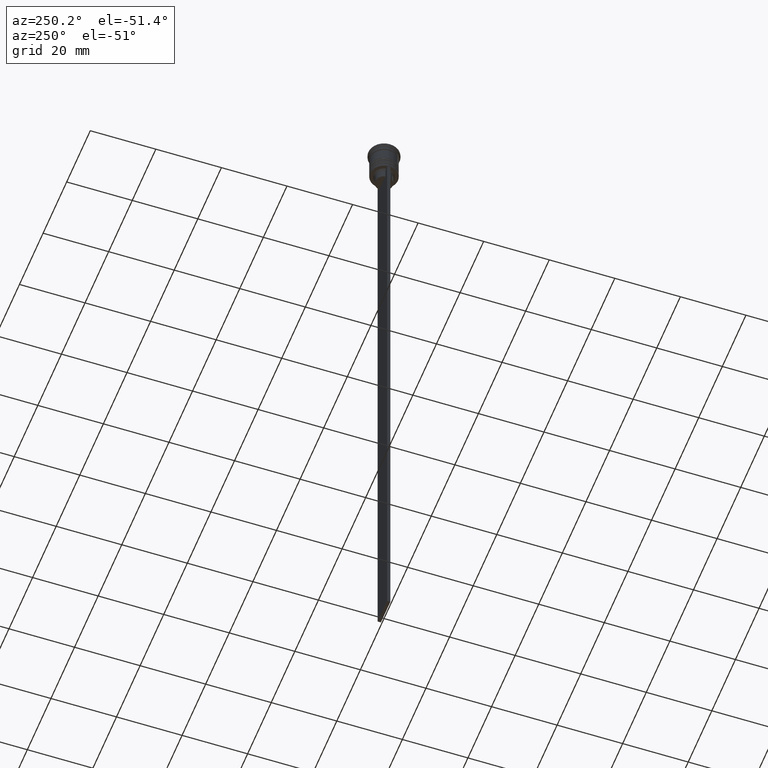
[diagram: clean part render]
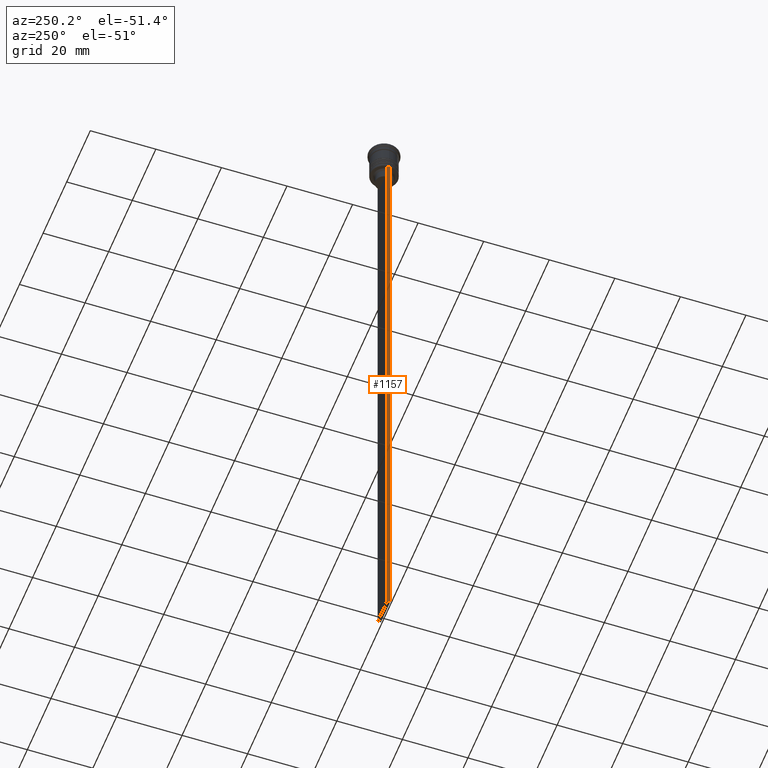
[diagram: same view with one face highlighted and labeled with its STEP entity id]
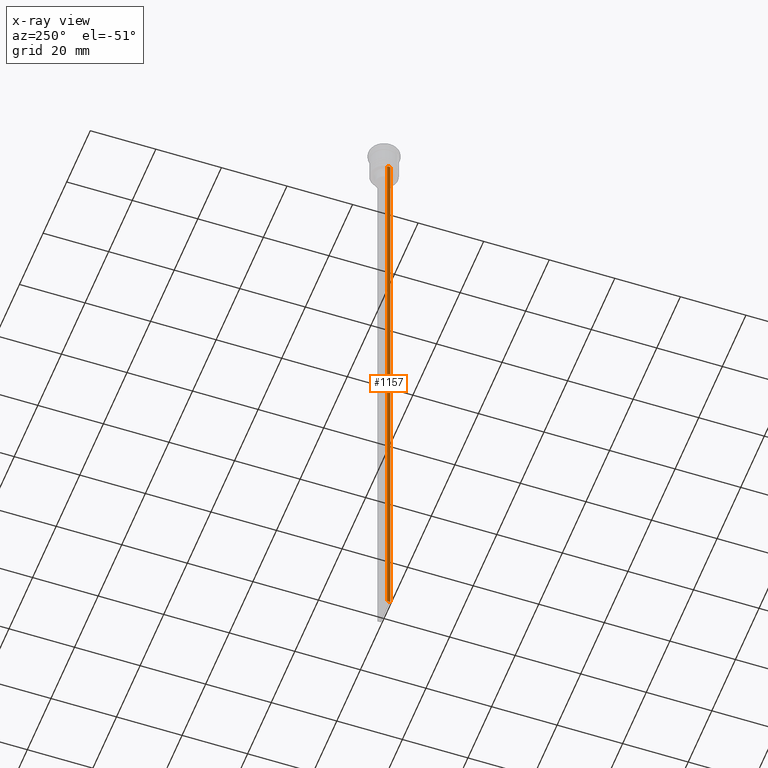
[diagram: x-ray of the same camera — body ghosted, the highlighted face saturated]
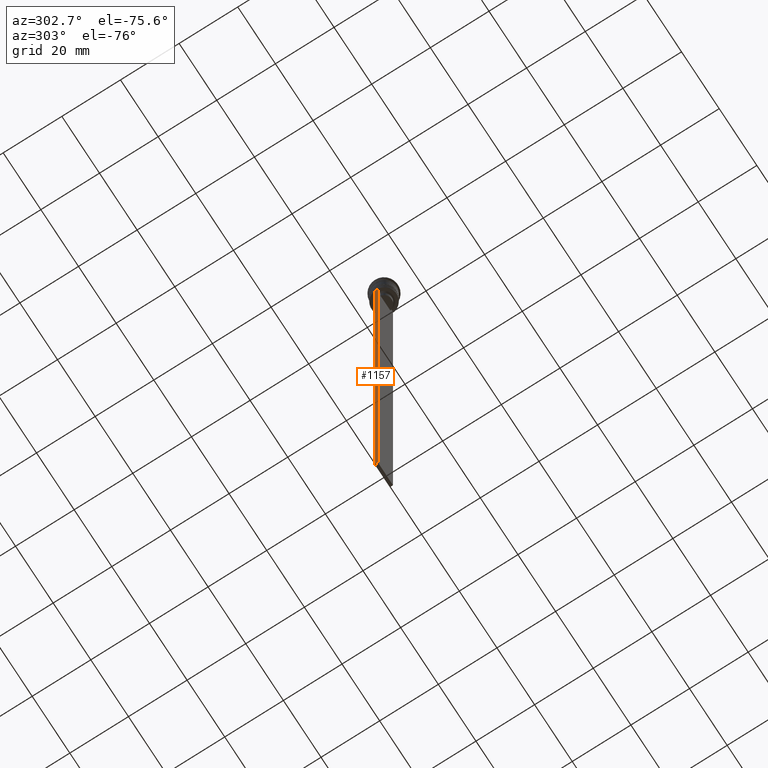
[diagram: same view with one face highlighted and labeled with its STEP entity id]
A machine part, auxiliary view. The second image highlights one B-rep face of the part: STEP entity #1157.
The next image is the same camera in x-ray: the body ghosted, the highlighted face saturated — about 0% of this face is hidden behind the body in this view.
A second angle (auxiliary view) of the same face is appended — the face is thin or edge-on in the first view.
In plain terms, the highlighted planar face has unit normal (-1, 0, 0).
Its self-contained STEP definition (entity closure, byte-faithful):
#59 = EDGE_CURVE ( 'NONE', #1277, #1807, #1113, .T. ) ;
#164 = DIRECTION ( 'NONE',  ( -1.000000000000000000, 0.000000000000000000, 0.000000000000000000 ) ) ;
#280 = EDGE_CURVE ( 'NONE', #1686, #1531, #676, .T. ) ;
#461 = CARTESIAN_POINT ( 'NONE',  ( -3.999999999999994671, -0.5000000000000004441, -1.437742251701450202 ) ) ;
#523 = VECTOR ( 'NONE', #663, 1000.000000000000000 ) ;
#638 = LINE ( 'NONE', #1406, #1134 ) ;
#663 = DIRECTION ( 'NONE',  ( 0.000000000000000000, 0.000000000000000000, -1.000000000000000000 ) ) ;
#676 = LINE ( 'NONE', #461, #523 ) ;
#896 = CARTESIAN_POINT ( 'NONE',  ( -3.999999999999994671, -0.5000000000000004441, -9.500000000000000000 ) ) ;
#907 = CARTESIAN_POINT ( 'NONE',  ( -3.999999999999994671, -0.5000000000000004441, -209.5000000000000284 ) ) ;
#1011 = ORIENTED_EDGE ( 'NONE', *, *, #280, .F. ) ;
#1083 = LINE ( 'NONE', #896, #1520 ) ;
#1113 = LINE ( 'NONE', #1851, #1799 ) ;
#1134 = VECTOR ( 'NONE', #1942, 1000.000000000000000 ) ;
#1157 = ADVANCED_FACE ( 'NONE', ( #1267 ), #2037, .T. ) ;
#1267 = FACE_OUTER_BOUND ( 'NONE', #1335, .T. ) ;
#1277 = VERTEX_POINT ( 'NONE', #2083 ) ;
#1335 = EDGE_LOOP ( 'NONE', ( #2156, #1888, #1924, #1011 ) ) ;
#1342 = AXIS2_PLACEMENT_3D ( 'NONE', #2003, #164, #2014 ) ;
#1406 = CARTESIAN_POINT ( 'NONE',  ( -3.999999999999994671, -0.5000000000000004441, -209.5000000000000284 ) ) ;
#1516 = EDGE_CURVE ( 'NONE', #1277, #1686, #1083, .T. ) ;
#1520 = VECTOR ( 'NONE', #2367, 1000.000000000000000 ) ;
#1531 = VERTEX_POINT ( 'NONE', #907 ) ;
#1686 = VERTEX_POINT ( 'NONE', #2081 ) ;
#1799 = VECTOR ( 'NONE', #1989, 1000.000000000000000 ) ;
#1807 = VERTEX_POINT ( 'NONE', #1925 ) ;
#1851 = CARTESIAN_POINT ( 'NONE',  ( -3.999999999999994671, 0.4999999999999995559, -1.437742251701450202 ) ) ;
#1854 = EDGE_CURVE ( 'NONE', #1531, #1807, #638, .T. ) ;
#1888 = ORIENTED_EDGE ( 'NONE', *, *, #59, .T. ) ;
#1924 = ORIENTED_EDGE ( 'NONE', *, *, #1854, .F. ) ;
#1925 = CARTESIAN_POINT ( 'NONE',  ( -3.999999999999994671, 0.4999999999999995559, -209.5000000000000284 ) ) ;
#1942 = DIRECTION ( 'NONE',  ( 0.000000000000000000, 1.000000000000000000, 0.000000000000000000 ) ) ;
#1989 = DIRECTION ( 'NONE',  ( 0.000000000000000000, 0.000000000000000000, -1.000000000000000000 ) ) ;
#2003 = CARTESIAN_POINT ( 'NONE',  ( -3.999999999999994671, -0.5000000000000004441, -1.437742251701450202 ) ) ;
#2014 = DIRECTION ( 'NONE',  ( 0.000000000000000000, 0.000000000000000000, 1.000000000000000000 ) ) ;
#2037 = PLANE ( 'NONE',  #1342 ) ;
#2081 = CARTESIAN_POINT ( 'NONE',  ( -3.999999999999994671, -0.5000000000000004441, -9.500000000000000000 ) ) ;
#2083 = CARTESIAN_POINT ( 'NONE',  ( -3.999999999999994671, 0.4999999999999997780, -9.500000000000000000 ) ) ;
#2156 = ORIENTED_EDGE ( 'NONE', *, *, #1516, .F. ) ;
#2367 = DIRECTION ( 'NONE',  ( 0.000000000000000000, -1.000000000000000000, 0.000000000000000000 ) ) ;